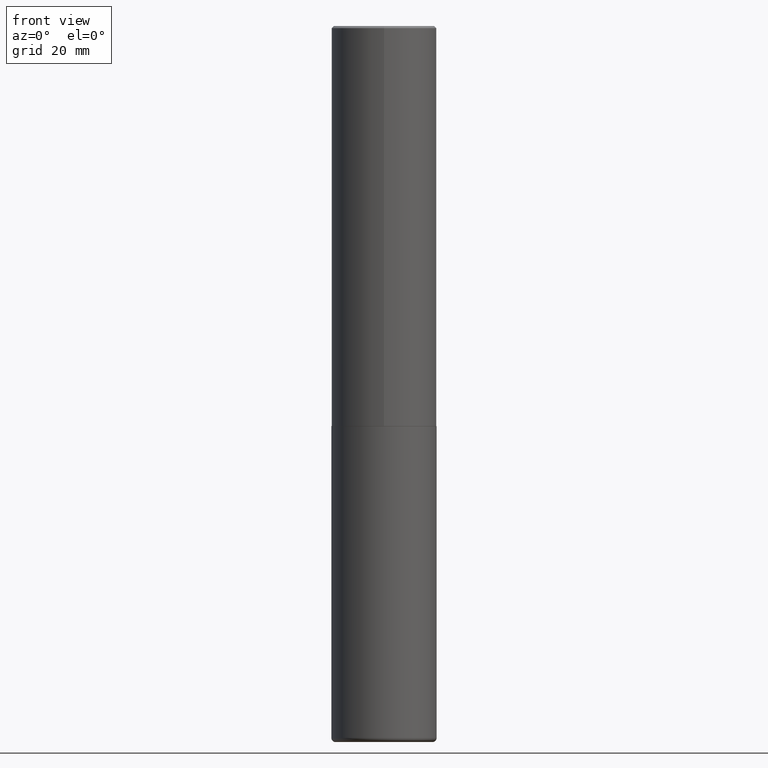
[diagram: clean part render]
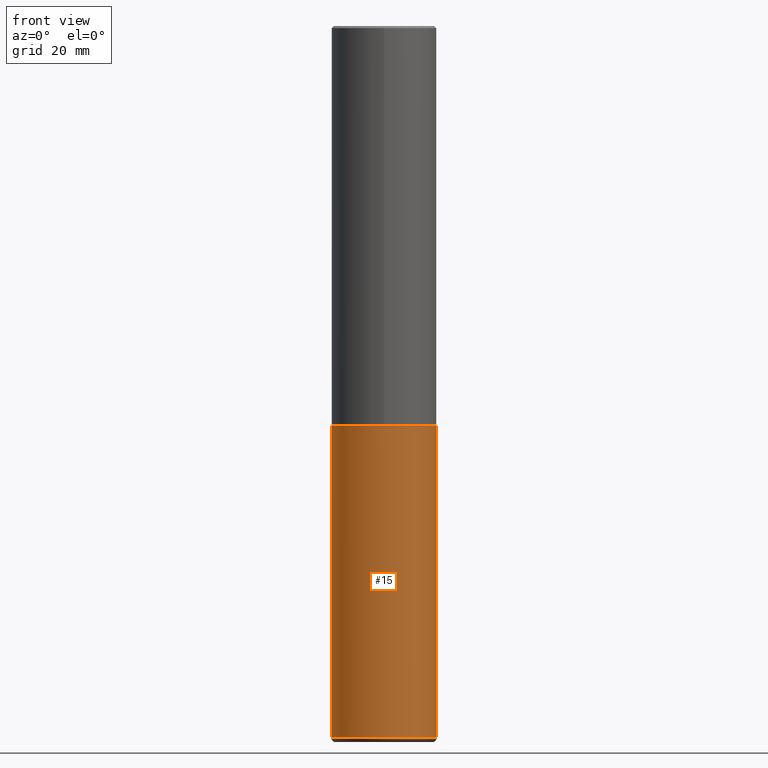
[diagram: same view with one face highlighted and labeled with its STEP entity id]
A machine part, front view. The second image highlights one B-rep face of the part: STEP entity #15.
In plain terms, the highlighted cylindrical surface (partial cylindrical patch) has radius 12.5006 mm, axis along (-0, 0, 1).
Its self-contained STEP definition (entity closure, byte-faithful):
#2 = AXIS2_PLACEMENT_3D ( 'NONE', #338, #206, #210 ) ;
#5 = VERTEX_POINT ( 'NONE', #120 ) ;
#15 = ADVANCED_FACE ( 'NONE', ( #52 ), #245, .T. ) ;
#22 = CARTESIAN_POINT ( 'NONE',  ( -0.4921499999999999764, 3.496936074043332897E-15, -2.420853904668951509E-29 ) ) ;
#52 = FACE_OUTER_BOUND ( 'NONE', #230, .T. ) ;
#53 = CIRCLE ( 'NONE', #2, 0.4921500000000000319 ) ;
#83 = DIRECTION ( 'NONE',  ( -2.445468806185136877E-29, 3.491481338843145188E-15, 1.000000000000000000 ) ) ;
#120 = CARTESIAN_POINT ( 'NONE',  ( 0.4921500000000002539, -2.666723616981616910E-14, -6.653500000000000192 ) ) ;
#137 = EDGE_CURVE ( 'NONE', #378, #5, #53, .T. ) ;
#145 = VERTEX_POINT ( 'NONE', #212 ) ;
#154 = CARTESIAN_POINT ( 'NONE',  ( 0.4921499999999999764, -1.649515443723054663E-14, -3.740100000000000424 ) ) ;
#176 = EDGE_CURVE ( 'NONE', #5, #288, #308, .T. ) ;
#182 = CARTESIAN_POINT ( 'NONE',  ( 0.000000000000000000, 0.000000000000000000, 0.000000000000000000 ) ) ;
#184 = DIRECTION ( 'NONE',  ( 1.000000000000000000, -6.982962677686265922E-15, 4.876176775795935793E-29 ) ) ;
#200 = AXIS2_PLACEMENT_3D ( 'NONE', #310, #313, #414 ) ;
#206 = DIRECTION ( 'NONE',  ( -2.445468806185136597E-29, 3.491481338843145583E-15, 1.000000000000000000 ) ) ;
#208 = EDGE_CURVE ( 'NONE', #378, #145, #403, .T. ) ;
#209 = DIRECTION ( 'NONE',  ( -2.445468806185136597E-29, 3.491481338843145583E-15, 1.000000000000000000 ) ) ;
#210 = DIRECTION ( 'NONE',  ( 1.000000000000000000, -6.982962677686265133E-15, 0.000000000000000000 ) ) ;
#212 = CARTESIAN_POINT ( 'NONE',  ( -0.4921499999999999764, -1.464759414765672840E-14, -3.740100000000000424 ) ) ;
#230 = EDGE_LOOP ( 'NONE', ( #417, #349, #409, #259 ) ) ;
#243 = DIRECTION ( 'NONE',  ( -2.445468806185136877E-29, 3.491481338843145188E-15, 1.000000000000000000 ) ) ;
#245 = CYLINDRICAL_SURFACE ( 'NONE', #340, 0.4921499999999999764 ) ;
#259 = ORIENTED_EDGE ( 'NONE', *, *, #299, .F. ) ;
#275 = VECTOR ( 'NONE', #243, 39.37007874015748143 ) ;
#278 = CARTESIAN_POINT ( 'NONE',  ( 0.4921499999999999764, -3.436665081823295777E-15, 2.399810400207969603E-29 ) ) ;
#288 = VERTEX_POINT ( 'NONE', #154 ) ;
#299 = EDGE_CURVE ( 'NONE', #145, #288, #366, .T. ) ;
#308 = LINE ( 'NONE', #278, #345 ) ;
#310 = CARTESIAN_POINT ( 'NONE',  ( 9.146297882013029477E-29, -1.305848935540725085E-14, -3.740100000000000424 ) ) ;
#313 = DIRECTION ( 'NONE',  ( -2.445468806185136597E-29, 3.491481338843145583E-15, 1.000000000000000000 ) ) ;
#338 = CARTESIAN_POINT ( 'NONE',  ( 1.627092670195280843E-28, -2.323057108799287175E-14, -6.653500000000000192 ) ) ;
#340 = AXIS2_PLACEMENT_3D ( 'NONE', #182, #209, #184 ) ;
#345 = VECTOR ( 'NONE', #83, 39.37007874015748143 ) ;
#348 = CARTESIAN_POINT ( 'NONE',  ( -0.4921500000000002539, -1.973363501394954437E-14, -6.653500000000000192 ) ) ;
#349 = ORIENTED_EDGE ( 'NONE', *, *, #137, .T. ) ;
#366 = CIRCLE ( 'NONE', #200, 0.4921499999999999764 ) ;
#378 = VERTEX_POINT ( 'NONE', #348 ) ;
#403 = LINE ( 'NONE', #22, #275 ) ;
#409 = ORIENTED_EDGE ( 'NONE', *, *, #176, .T. ) ;
#414 = DIRECTION ( 'NONE',  ( 1.000000000000000000, -6.982962677686265922E-15, 0.000000000000000000 ) ) ;
#417 = ORIENTED_EDGE ( 'NONE', *, *, #208, .F. ) ;